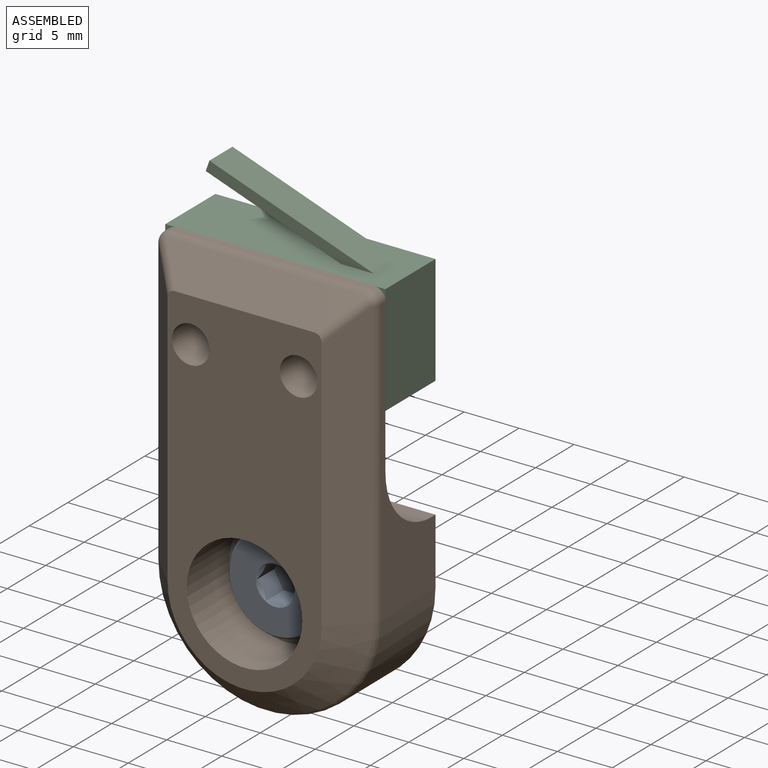
[diagram: assembled view]
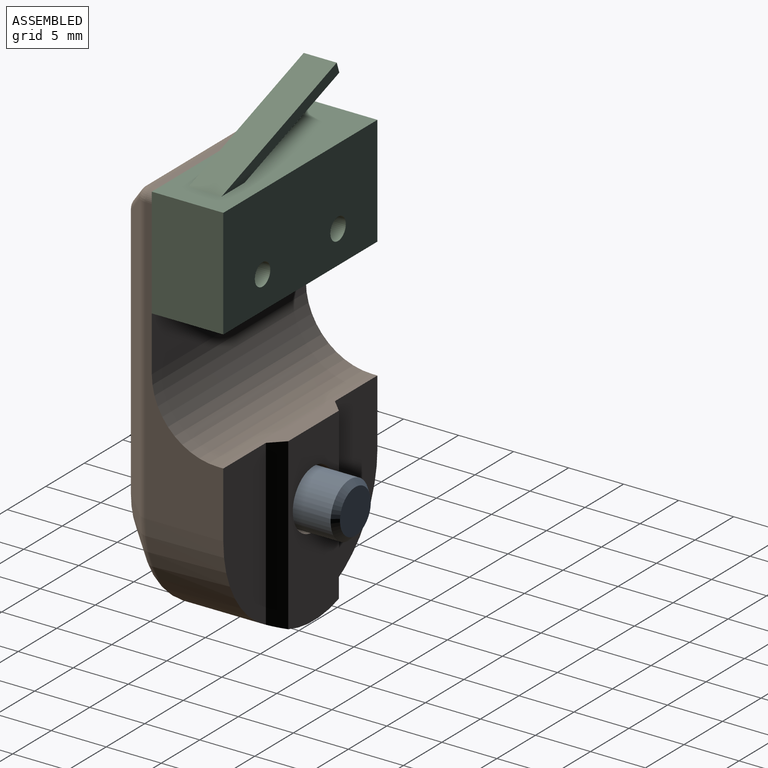
[diagram: assembled view, second angle]
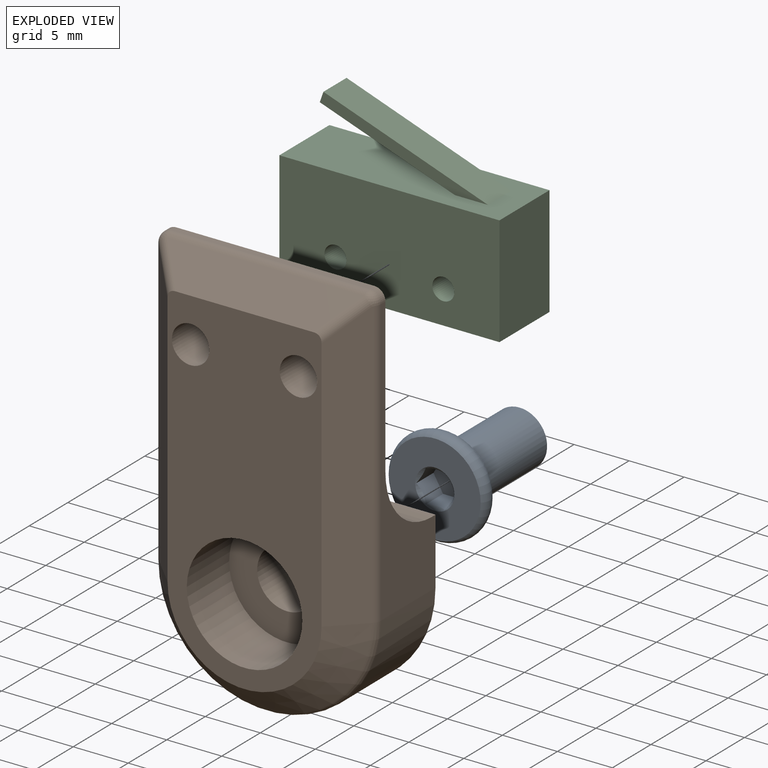
[diagram: exploded view]
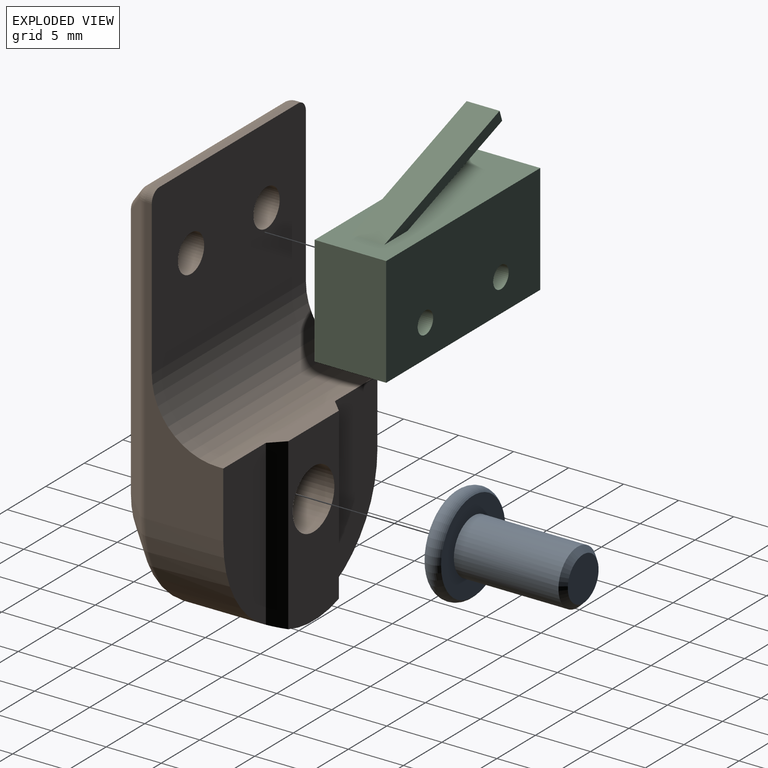
[diagram: exploded view, second angle]
ASSEMBLY  parts=3 mates=2
PART A: 14 faces, bbox 11.8x9.7x9.7 mm
  f0: cylinder r=2.5mm len=9.5mm, axis (1,0,0), area 149.2mm2, adj f2,f5
  f1: plane 4x4mm, normal (1,0,0), area 12.6mm2, adj f2
  f2: cone r=2mm half-angle=45deg, axis (-1,0,0), area 10mm2, adj f0,f1
  f3: plane 8.32x8.32mm, normal (-1,0,0), area 44.4mm2, adj f4,f6
  f4: torus R=3.5mm, axis (-1,0,0), area 46.7mm2, adj f3,f5
  f5: plane 8.32x8.32mm, normal (1,0,0), area 34.8mm2, adj f0,f4
  f6: cone r=1.78mm half-angle=45deg, axis (-1,0,0), area 3.1mm2, adj f3,f8,f9,f10,f11,f12,f13
  f7: plane 3.46x3mm, normal (-1,0,0), area 7.8mm2, adj f8,f9,f10,f11,f12,f13
  f8: plane 2.25x1.5mm, normal (0,-0.87,0.5), area 3.6mm2, adj f6,f7,f9,f13
  f9: plane 2.25x1.73mm, normal (0,0,1), area 3.6mm2, adj f6,f7,f8,f10
  f10: plane 2.25x1.5mm, normal (0,0.87,0.5), area 3.6mm2, adj f6,f7,f9,f11
  f11: plane 2.25x1.5mm, normal (0,0.87,-0.5), area 3.6mm2, adj f6,f7,f10,f12
  f12: plane 2.25x1.73mm, normal (0,0,-1), area 3.6mm2, adj f6,f7,f11,f13
  f13: plane 2.25x1.5mm, normal (0,-0.87,-0.5), area 3.6mm2, adj f6,f7,f8,f12
PART B: 32 faces, bbox 21.7x11.8x37.8 mm
  f0: plane 14.94x5.52mm, normal (0,1,0), area 68.4mm2, adj f5,f8,f9,f30
  f1: cylinder r=2.7mm len=6.2mm, axis (0,-1,0), area 105.2mm2, adj f13,f29
  f2: plane 18x0.59mm, normal (0,0,1), area 10.5mm2, adj f6,f20,f22,f28
  f3: plane 31x14mm, normal (0,-1,0), area 308mm2, adj f11,f12,f14,f15,f16,f17,f18,f19
  f4: plane 14.94x5.52mm, normal (0,1,0), area 68.4mm2, adj f5,f7,f9,f31
  f5: plane 20x1.7mm, normal (0,0,1), area 19.3mm2, adj f0,f4,f7,f8,f10,f29,f30,f31
  f6: plane 20x15mm, normal (0,1,0), area 281.4mm2, adj f2,f7,f8,f10,f11,f12,f20,f22
  f7: plane 26x7.09mm, normal (1,0,0), area 62mm2, adj f4,f5,f6,f9,f10,f22,f25
  f8: plane 26x7.09mm, normal (-1,0,0), area 62mm2, adj f0,f5,f6,f9,f10,f20,f23
  f9: cylinder r=10mm len=20mm, axis (0,-1,0), area 232.2mm2, adj f0,f4,f7,f8,f24,f29,f30,f31
  f10: cylinder r=6mm len=20mm, axis (1,0,0), area 188.5mm2, adj f5,f6,f7,f8
  f11: cylinder r=1.7mm len=4mm, axis (0,-1,0), area 42.7mm2, adj f3,f6
  f12: cylinder r=1.7mm len=4mm, axis (0,-1,0), area 42.7mm2, adj f3,f6
  f13: plane 10.5x10.5mm, normal (0,-1,0), area 63.7mm2, adj f1,f14
  f14: cylinder r=5.25mm len=10.5mm, axis (0,-1,0), area 181.4mm2, adj f3,f13
  f15: plane 26x2.71mm, normal (-0.71,-0.71,0), area 94.4mm2, adj f3,f16,f19,f23
  f16: cone r=7mm half-angle=45deg, axis (0,1,0), area 100.5mm2, adj f3,f15,f18,f24
  f17: plane 18x2.71mm, normal (0,-0.71,0.71), area 58.5mm2, adj f3,f19,f21,f28
  f18: plane 26x2.71mm, normal (0.71,-0.71,0), area 94.4mm2, adj f3,f16,f21,f25
  f19: cylinder r=1mm len=3.41mm, axis (-0.58,0.58,0.58), area 4.8mm2, adj f3,f15,f17,f26
  f20: cylinder r=1mm len=1mm, axis (0,-1,0), area 0.9mm2, adj f2,f6,f8,f26
  f21: cylinder r=1mm len=3.41mm, axis (-0.58,-0.58,-0.58), area 4.8mm2, adj f3,f17,f18,f27
  f22: cylinder r=1mm len=1mm, axis (0,1,0), area 0.9mm2, adj f2,f6,f7,f27
  f23: cylinder r=1mm len=26mm, axis (0,0,-1), area 20.4mm2, adj f8,f15,f24,f26
  f24: torus R=9mm, axis (0,-1,0), area 24.4mm2, adj f9,f16,f23,f25
  f25: cylinder r=1mm len=26mm, axis (0,0,1), area 20.4mm2, adj f7,f18,f24,f27
  f26: sphere r=1mm, area 1.2mm2, adj f19,f20,f23,f28
  f27: sphere r=1mm, area 1.2mm2, adj f21,f22,f25,f28
  f28: cylinder r=1mm len=18mm, axis (-1,0,0), area 14.1mm2, adj f2,f17,f26,f27
  f29: plane 16x6.57mm, normal (0,1,0), area 81mm2, adj f1,f5,f9,f30,f31
  f30: plane 15.46x1.22mm, normal (-0.71,0.71,0), area 25.8mm2, adj f0,f5,f9,f29
  f31: plane 15.46x1.22mm, normal (0.71,0.71,0), area 25.8mm2, adj f4,f5,f9,f29
PART C: 13 faces, bbox 15.3x6.5x20 mm
  f0: plane 20x6.5mm, normal (-1,0,0), area 121mm2, adj f1,f5,f6,f7,f8,f9,f10,f11
  f1: plane 10x6.5mm, normal (0,0,-1), area 65mm2, adj f0,f2,f6,f7
  f2: plane 20x6.5mm, normal (1,0,0), area 130mm2, adj f1,f5,f6,f7
  f3: cylinder r=1mm len=6.5mm, axis (0,1,0), area 40.8mm2, adj f6,f7
  f4: cylinder r=1mm len=6.5mm, axis (0,1,0), area 40.8mm2, adj f6,f7
  f5: plane 10x6.5mm, normal (0,0,1), area 65mm2, adj f0,f2,f6,f7
  f6: plane 20x10mm, normal (0,-1,0), area 193.7mm2, adj f0,f1,f2,f3,f4,f5
  f7: plane 20x10mm, normal (0,1,0), area 193.7mm2, adj f0,f1,f2,f3,f4,f5
  f8: plane 15.28x5.29mm, normal (0,1,0), area 14.4mm2, adj f0,f10,f11,f12
  f9: plane 15.28x5.29mm, normal (0,-1,0), area 14.4mm2, adj f0,f10,f11,f12
  f10: plane 14.95x5.29mm, normal (-0.94,0,0.33), area 47.6mm2, adj f0,f8,f9,f12
  f11: plane 12.28x4.35mm, normal (0.94,0,-0.33), area 39.1mm2, adj f0,f8,f9,f12
  f12: plane 3x0.94mm, normal (-0.33,0,-0.94), area 3mm2, adj f8,f9,f10,f11
PLACE A rot(axis=(0,0,1),90deg) t=(-0.79,49.59,-7.91)mm
PLACE B t=(-0.79,14.59,-115.91)mm
PLACE C rot(axis=(0,1,0),90deg) t=(-0.79,1.34,9.09)mm
MATE fastened C.f3 <-> B.f11  axis (0,-1,0) through (4.11,-1.91,12.09)mm
MATE fastened A.f4 <-> B.f1  axis (0,1,0) through (-0.79,-0.41,-7.91)mm
